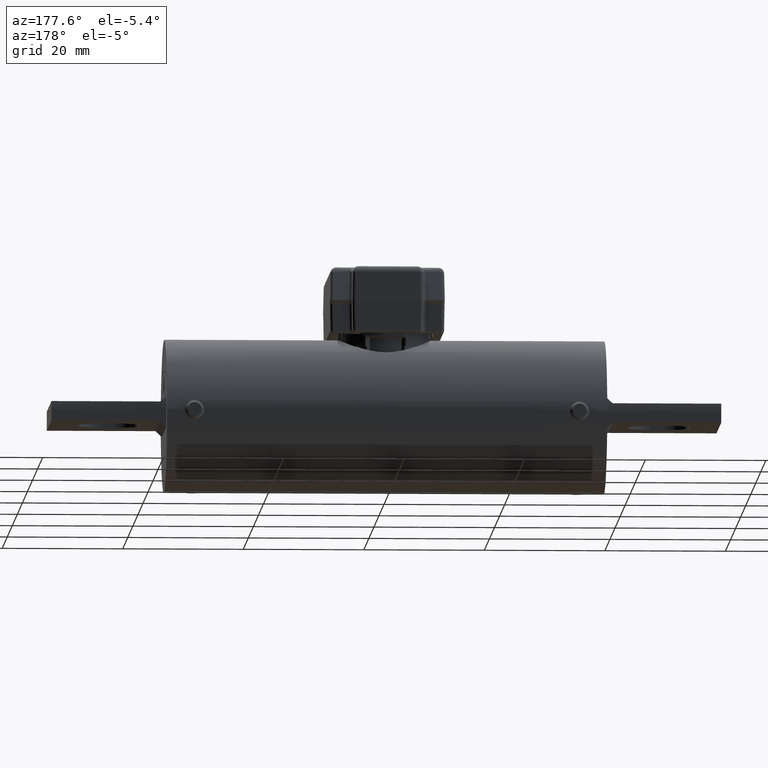
[diagram: clean part render]
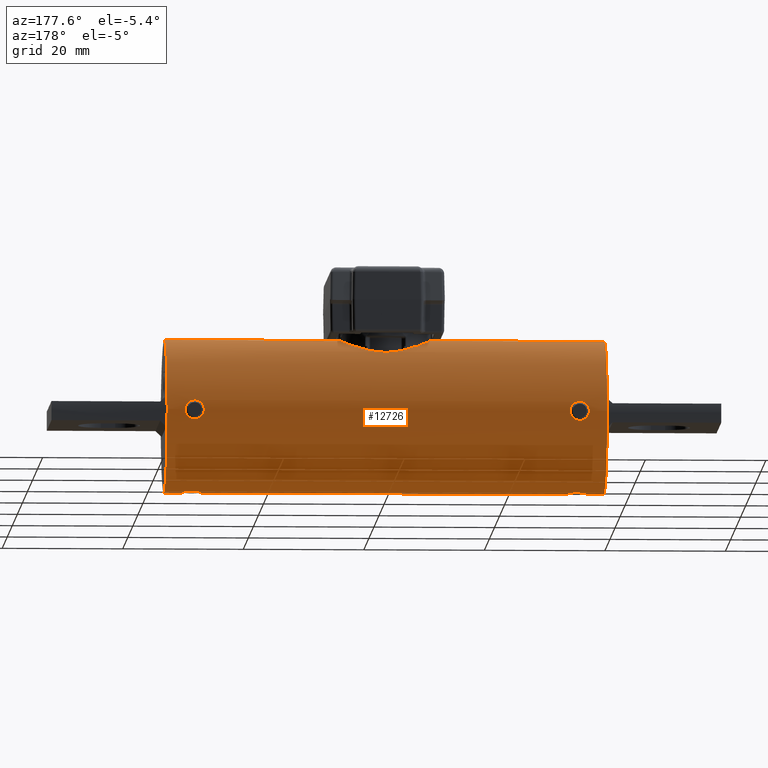
[diagram: same view with one face highlighted and labeled with its STEP entity id]
A machine part, auxiliary view. The second image highlights one B-rep face of the part: STEP entity #12726.
In plain terms, the highlighted cylindrical surface (bore or boss wall) has radius 12.7 mm, axis along (-1, -0, -0).
Its self-contained STEP definition (entity closure, byte-faithful):
#212 = CARTESIAN_POINT ( 'NONE',  ( -1.437500000000000000, 0.5000000000000000000, -4.350503661753281500E-018 ) ) ;
#219 = EDGE_LOOP ( 'NONE', ( #12238 ) ) ;
#337 = CARTESIAN_POINT ( 'NONE',  ( -1.257499999999999800, 0.4960783708246107600, 0.06250000000000000000 ) ) ;
#453 = CARTESIAN_POINT ( 'NONE',  ( -1.319595655223787500, 0.4999489905640459600, -0.008190941524493440200 ) ) ;
#576 = EDGE_CURVE ( 'NONE', #31474, #31474, #18086, .T. ) ;
#615 = CARTESIAN_POINT ( 'NONE',  ( 1.307206562763862300, -0.4985573244677425400, -0.03810746481187187600 ) ) ;
#640 = CARTESIAN_POINT ( 'NONE',  ( 1.295884908318192000, -0.04999238294626352800, -0.4975280437599332000 ) ) ;
#724 = CARTESIAN_POINT ( 'NONE',  ( 1.257499999999999800, 0.06249999999999977800, -0.4960783708246118700 ) ) ;
#749 = CARTESIAN_POINT ( 'NONE',  ( 1.216239491202372800, -0.4977828249535850600, -0.04712556157976027100 ) ) ;
#775 = CARTESIAN_POINT ( 'NONE',  ( 1.313686864666317600, 0.02767778165740591600, -0.4992477292312976800 ) ) ;
#866 = CARTESIAN_POINT ( 'NONE',  ( 1.216141816388842000, -0.4977911527964373800, 0.04703560355963951100 ) ) ;
#965 = CARTESIAN_POINT ( 'NONE',  ( -1.195405989953049400, -0.4999487909449428200, -0.008196878144086910300 ) ) ;
#979 = CARTESIAN_POINT ( 'NONE',  ( 1.288767747779057800, -0.4970512361286701900, 0.05427020760983326100 ) ) ;
#1021 = EDGE_LOOP ( 'NONE', ( #8880 ) ) ;
#1088 = CARTESIAN_POINT ( 'NONE',  ( -1.273709644937716300, -0.4963269458974843800, -0.06049966359275655400 ) ) ;
#1220 = CARTESIAN_POINT ( 'NONE',  ( -1.319998464438072400, -0.4999998080547725700, -0.004104124332361521800 ) ) ;
#1355 = CARTESIAN_POINT ( 'NONE',  ( -1.253423619746182300, -0.4960779024746064800, 0.06250371741446923700 ) ) ;
#1533 = DIRECTION ( 'NONE',  ( 1.000000000000000000, 1.288757327041179300E-017, 2.716172047394050600E-017 ) ) ;
#1790 = CARTESIAN_POINT ( 'NONE',  ( -0.2870142775421044000, -0.1007842548170761900, 0.4898349509663083600 ) ) ;
#1932 = CARTESIAN_POINT ( 'NONE',  ( -0.2764006808222186900, 0.1270673575543313800, 0.4836773442981498500 ) ) ;
#2001 = CARTESIAN_POINT ( 'NONE',  ( -1.313686182008423800, 0.4992476504834643100, -0.02767940375579234000 ) ) ;
#2033 = CARTESIAN_POINT ( 'NONE',  ( 0.1003489581096394800, 0.2883418728774969600, 0.4085886772095307400 ) ) ;
#2077 = CARTESIAN_POINT ( 'NONE',  ( -0.07062101437366043200, 0.2962505467809274900, 0.4027927927214302000 ) ) ;
#2144 = CARTESIAN_POINT ( 'NONE',  ( -1.241131140906368100, 0.4962914595925033700, -0.06086548017514419700 ) ) ;
#2175 = CARTESIAN_POINT ( 'NONE',  ( 0.3027829850546712200, 0.04187837565067419100, 0.4986422031088471600 ) ) ;
#2219 = B_SPLINE_CURVE_WITH_KNOTS ( 'NONE', 3,
 ( #31547, #25304, #12918, #34606, #16032, #37778, #19117, #615, #22274, #3743, #25416, #6790, #28550, #9879, #31677, #13047, #34745, #16162, #37901, #19240, #749, #22413, #3871, #25540, #6916, #28681, #10001, #31814, #13174, #34872, #16279, #38028, #19367, #866, #22540, #4000, #25663, #7045, #28799, #10132, #31936, #13303, #35006, #16404, #38162, #19509, #979, #22668, #4135, #25794, #7168, #28927, #10280, #32060 ),
 .UNSPECIFIED., .T., .F.,
 ( 4, 2, 2, 2, 2, 2, 2, 2, 2, 2, 2, 2, 2, 2, 2, 2, 2, 2, 2, 2, 2, 2, 2, 2, 2, 2, 4 ),
 ( 0.0000000000000000000, 0.0003104694554202024300, 0.0006209389108404049700, 0.0009314083662606075600, 0.001241877821680810200, 0.001862816732521201000, 0.002483755643361592100, 0.002794225098781787900, 0.003104694554201982800, 0.003415164009622178100, 0.003725633465042373000, 0.004036102920462568800, 0.004346572375882764100, 0.004657041831302958500, 0.004967511286723153900, 0.005588450197563545400, 0.006209389108403935200, 0.006519858563824135700, 0.006830328019244334500, 0.007140797474664533300, 0.007451266930084732100, 0.007761736385504931800, 0.008072205840925130600, 0.008382675296345329400, 0.008693144751765528200, 0.009314083662605925800, 0.009935022573446325100 ),
 .UNSPECIFIED. ) ;
#2276 = CARTESIAN_POINT ( 'NONE',  ( -1.196981405171167400, 0.4997555736180577200, 0.01613559382510986900 ) ) ;
#2300 = CARTESIAN_POINT ( 'NONE',  ( 0.2418117716749440500, -0.1859671060584045200, 0.4642012204317065800 ) ) ;
#2390 = B_SPLINE_CURVE_WITH_KNOTS ( 'NONE', 3,
 ( #17432, #7699, #39210, #20580, #2033, #23743, #5111, #26850, #8233, #29962, #11350, #33080, #14464, #36231, #17560, #39354, #20708, #2175, #23883, #5243, #26988, #8377, #30098, #11480, #33226, #14600, #36355, #17699, #39500, #20835, #2300, #24038, #5374, #27132, #8507, #30230, #11623, #33346, #14738, #36493, #17839, #39633, #20980, #2433, #24172, #5513, #27279, #8628, #30374, #11762, #33471, #14872, #36637, #17975, #39770, #21115, #2580, #24315, #5652, #27418, #8760, #30501, #17219, #20348, #1790, #23512, #4895, #26616, #8018, #29724, #11116, #32875, #14242, #35998, #17338, #39123, #20483, #1932, #23650, #5028, #26754, #8147, #29869, #11257, #32998, #14374, #36136, #17470, #39257, #20618, #2077, #23785, #5158, #26892, #8276, #30005 ),
 .UNSPECIFIED., .T., .F.,
 ( 4, 2, 2, 2, 2, 2, 2, 2, 2, 2, 2, 2, 2, 2, 2, 2, 2, 2, 2, 2, 2, 2, 2, 2, 2, 2, 2, 2, 2, 2, 2, 2, 2, 2, 2, 2, 2, 2, 2, 2, 2, 2, 2, 2, 2, 2, 2, 4 ),
 ( 0.0000000000000000000, 0.001549650798207477800, 0.003099301596414955700, 0.004648952394622434200, 0.006198603192829911300, 0.006973428591933649100, 0.007748253991037386800, 0.009297904789244859600, 0.01084755558745233500, 0.01239720638565980700, 0.01317203178476354700, 0.01394685718386728100, 0.01472168258297101900, 0.01549650798207475300, 0.01704615878028222600, 0.01782098417938596200, 0.01859580957848969800, 0.01937063497759343400, 0.02014546037669717400, 0.02169511117490464600, 0.02246993657400838200, 0.02324476197311211800, 0.02479441277131959300, 0.02634406356952707200, 0.02711888896863080800, 0.02789371436773454800, 0.02866853976683828400, 0.02944336516594202700, 0.03099301596414950200, 0.03176784136325324500, 0.03254266676235698100, 0.03409231756056446000, 0.03486714295966820300, 0.03564196835877193900, 0.03641679375787567500, 0.03719161915697941100, 0.03874126995518689000, 0.03951609535429062600, 0.04029092075339436900, 0.04106574615249810500, 0.04184057155160184100, 0.04339022234980932000, 0.04493987314801678500, 0.04648952394622426300, 0.04726434934532799300, 0.04803917474443172200, 0.04881400014353546500, 0.04958882554263919400 ),
 .UNSPECIFIED. ) ;
#2433 = CARTESIAN_POINT ( 'NONE',  ( 0.04271970932316926400, -0.3022375431745998900, 0.3983451510602527600 ) ) ;
#2472 = CARTESIAN_POINT ( 'NONE',  ( 1.196650164804164800, 0.4997868126409651400, 0.01642564646188216000 ) ) ;
#2495 = CARTESIAN_POINT ( 'NONE',  ( -1.312113075546024200, 0.03146293508964710700, -0.4990658710701930100 ) ) ;
#2580 = CARTESIAN_POINT ( 'NONE',  ( -0.1999847412210474800, -0.2300091487670632400, 0.4442141192552557800 ) ) ;
#2621 = CARTESIAN_POINT ( 'NONE',  ( 1.229773705330447800, 0.4968382241439636700, -0.05616292056679361000 ) ) ;
#2645 = CARTESIAN_POINT ( 'NONE',  ( -1.288881168684228800, -0.05420361203865550100, -0.4970584947662372000 ) ) ;
#2763 = CARTESIAN_POINT ( 'NONE',  ( 1.316783104636812400, 0.4996056401590636700, -0.02021254283739073000 ) ) ;
#2787 = CARTESIAN_POINT ( 'NONE',  ( -1.201362590241301400, -0.02777813184713141100, -0.4992421436114792800 ) ) ;
#2890 = CARTESIAN_POINT ( 'NONE',  ( 1.289011328285782200, 0.4970214863087187900, 0.05458516125259291900 ) ) ;
#2911 = CARTESIAN_POINT ( 'NONE',  ( -1.219026027969229500, 0.04992330185600604700, -0.4975350670415630300 ) ) ;
#2923 = CARTESIAN_POINT ( 'NONE',  ( 1.216180627246523000, 0.04706958153058851000, -0.4977879212851562500 ) ) ;
#3069 = CARTESIAN_POINT ( 'NONE',  ( 1.216203026983083500, -0.04709361215047941400, -0.4977858618940659300 ) ) ;
#3434 = CARTESIAN_POINT ( 'NONE',  ( -1.273690055211459600, 0.4963264095325282100, 0.06050402349051197500 ) ) ;
#3725 = CARTESIAN_POINT ( 'NONE',  ( -1.194999999999999800, -0.5000000000000000000, -6.715272548589508500E-017 ) ) ;
#3730 = EDGE_LOOP ( 'NONE', ( #27695 ) ) ;
#3743 = CARTESIAN_POINT ( 'NONE',  ( 1.295929122843945300, -0.4975315357459818600, -0.04995795352722903800 ) ) ;
#3766 = CARTESIAN_POINT ( 'NONE',  ( 1.307175838650762800, -0.03814726975449224400, -0.4985542548742699100 ) ) ;
#3871 = CARTESIAN_POINT ( 'NONE',  ( 1.207823323835861600, -0.4985543648053262800, -0.03814495283448220800 ) ) ;
#3895 = CARTESIAN_POINT ( 'NONE',  ( 1.307239858869736300, 0.03806407917967102200, -0.4985606568458560400 ) ) ;
#4000 = CARTESIAN_POINT ( 'NONE',  ( 1.226136242945633500, -0.4970573288580241200, 0.05421455175001196900 ) ) ;
#4107 = EDGE_LOOP ( 'NONE', ( #8407 ) ) ;
#4111 = CARTESIAN_POINT ( 'NONE',  ( -1.198199583253437100, -0.4996077059069863300, -0.02016153547161390500 ) ) ;
#4135 = CARTESIAN_POINT ( 'NONE',  ( 1.298777836073979700, -0.4977844619270133700, 0.04710597957305471400 ) ) ;
#4232 = CARTESIAN_POINT ( 'NONE',  ( -1.285179268635590300, -0.4968355786480978000, -0.05618624600079433900 ) ) ;
#4349 = CARTESIAN_POINT ( 'NONE',  ( -1.318365471400270400, -0.4997887517757653700, 0.01636892145062360900 ) ) ;
#4475 = CARTESIAN_POINT ( 'NONE',  ( -1.241364460190920400, -0.4963246256228307500, 0.06051860816765491200 ) ) ;
#4718 = B_SPLINE_CURVE_WITH_KNOTS ( 'NONE', 3,
 ( #38138, #31913, #965, #22645, #4111, #25770, #7152, #28909, #10251, #32038, #13389, #35128, #16504, #38263, #19618, #1088, #22772, #4232, #25901, #7289, #29026, #10398, #32175, #13507, #35255, #16645, #38394, #19748, #1220, #22909, #4349, #26028, #7420, #29146, #10523, #32303, #13639, #35402, #16769, #38525, #19887, #1355, #23046, #4475, #26160, #7559, #29281, #10655, #32421, #13780, #35542, #16898, #38659, #20030 ),
 .UNSPECIFIED., .T., .F.,
 ( 4, 2, 2, 2, 2, 2, 2, 2, 2, 2, 2, 2, 2, 2, 2, 2, 2, 2, 2, 2, 2, 2, 2, 2, 2, 2, 4 ),
 ( 0.0000000000000000000, 0.0003104694554201922400, 0.0006209389108403844800, 0.0009314083662605766600, 0.001241877821680768700, 0.001862816732521159600, 0.002483755643361560000, 0.002794225098781760100, 0.003104694554201959800, 0.003415164009622160300, 0.003725633465042360000, 0.004036102920462560100, 0.004346572375882759700, 0.004657041831302960300, 0.004967511286723159900, 0.005588450197563561000, 0.006209389108403961200, 0.006519858563824163500, 0.006830328019244364900, 0.007140797474664565400, 0.007451266930084766800, 0.007761736385504967300, 0.008072205840925168700, 0.008382675296345369300, 0.008693144751765569800, 0.009314083662605965700, 0.009935022573446359800 ),
 .UNSPECIFIED. ) ;
#4766 = FACE_OUTER_BOUND ( 'NONE', #26477, .T. ) ;
#4895 = CARTESIAN_POINT ( 'NONE',  ( -0.2955870357684511300, -0.07179461809382564600, 0.4949187758361848800 ) ) ;
#5028 = CARTESIAN_POINT ( 'NONE',  ( -0.2626663874919564200, 0.1534999143078399900, 0.4759422295027803100 ) ) ;
#5046 = EDGE_CURVE ( 'NONE', #20222, #20222, #33659, .T. ) ;
#5090 = CARTESIAN_POINT ( 'NONE',  ( -1.307209690505340100, 0.4985576679565900700, -0.03810195399619063800 ) ) ;
#5111 = CARTESIAN_POINT ( 'NONE',  ( 0.1540045538323727400, 0.2637054501044282500, 0.4249938491066960200 ) ) ;
#5158 = CARTESIAN_POINT ( 'NONE',  ( -0.04073760595673754000, 0.3018699683941340500, 0.3985928434305424700 ) ) ;
#5216 = CARTESIAN_POINT ( 'NONE',  ( -1.219115091681807400, 0.4975280437599334200, -0.04999238294626329200 ) ) ;
#5243 = CARTESIAN_POINT ( 'NONE',  ( 0.3050379134627133600, -0.009072089857162823600, 0.5000230891836774400 ) ) ;
#5345 = CARTESIAN_POINT ( 'NONE',  ( -1.201313135333682600, 0.4992477292312974500, 0.02767778165740623200 ) ) ;
#5374 = CARTESIAN_POINT ( 'NONE',  ( 0.2229223939723954400, -0.2081876909218730300, 0.4546597025597933200 ) ) ;
#5513 = CARTESIAN_POINT ( 'NONE',  ( -0.01898396575702679400, -0.3045801560161767700, 0.3965235672700581100 ) ) ;
#5547 = CARTESIAN_POINT ( 'NONE',  ( 1.194997744044198100, 0.5000002819944322500, -0.004045693888568052000 ) ) ;
#5569 = CARTESIAN_POINT ( 'NONE',  ( -1.319995459186318100, 0.008195494830062250900, -0.4999994323983760200 ) ) ;
#5635 = EDGE_LOOP ( 'NONE', ( #8821 ) ) ;
#5652 = CARTESIAN_POINT ( 'NONE',  ( -0.2273509380431671100, -0.2022370403131581700, 0.4573475731653511800 ) ) ;
#5686 = CARTESIAN_POINT ( 'NONE',  ( 1.241234901517917400, 0.4963287719338491100, -0.06048472929836581200 ) ) ;
#5708 = CARTESIAN_POINT ( 'NONE',  ( -1.277660660945808300, -0.05930066452345192400, -0.4964734895280880100 ) ) ;
#5720 = FACE_BOUND ( 'NONE', #8903, .T. ) ;
#5825 = CARTESIAN_POINT ( 'NONE',  ( 1.319586480588912100, 0.4999478504386056200, -0.008253339993256118100 ) ) ;
#5846 = CARTESIAN_POINT ( 'NONE',  ( -1.197010388631043000, -0.01624363288781757700, -0.4997520536924610600 ) ) ;
#5965 = CARTESIAN_POINT ( 'NONE',  ( 1.265766762816916200, 0.4960783708246111500, 0.06250000000000005600 ) ) ;
#5968 = CARTESIAN_POINT ( 'NONE',  ( 1.437500000000000000, 0.5000000000000000000, 7.373944270082563800E-017 ) ) ;
#5980 = CARTESIAN_POINT ( 'NONE',  ( -1.241020346722651300, 0.06083522554543807600, -0.4962952478256622000 ) ) ;
#5999 = CARTESIAN_POINT ( 'NONE',  ( 1.202886924453976800, 0.03146293508964713400, -0.4990658710701929600 ) ) ;
#6130 = CARTESIAN_POINT ( 'NONE',  ( 1.226118831315770000, -0.05420361203865537600, -0.4970584947662370400 ) ) ;
#6198 = VERTEX_POINT ( 'NONE', #724 ) ;
#6505 = CARTESIAN_POINT ( 'NONE',  ( -1.285228267081815600, 0.4968383298029137000, 0.05616199571157908700 ) ) ;
#6518 = CARTESIAN_POINT ( 'NONE',  ( 0.0005000000000001641600, 0.3044999999999999900, 0.3965851106635251400 ) ) ;
#6790 = CARTESIAN_POINT ( 'NONE',  ( 1.273925618332739700, -0.4962934146915266600, -0.06084983087721896500 ) ) ;
#6817 = CARTESIAN_POINT ( 'NONE',  ( 1.313637409758697800, -0.02777813184713142500, -0.4992421436114790600 ) ) ;
#6916 = CARTESIAN_POINT ( 'NONE',  ( 1.201337148269509700, -0.4992450173726789600, -0.02772644052468776300 ) ) ;
#6944 = CARTESIAN_POINT ( 'NONE',  ( 1.295973972030771200, 0.04992330185600600500, -0.4975350670415630300 ) ) ;
#7045 = CARTESIAN_POINT ( 'NONE',  ( 1.237287525221532500, -0.4964755968881502400, 0.05928312462641639100 ) ) ;
#7152 = CARTESIAN_POINT ( 'NONE',  ( -1.203258049270100400, -0.4990299115460125600, -0.03131664153770286800 ) ) ;
#7157 = DIRECTION ( 'NONE',  ( -1.000000000000000000, -1.288757327041179300E-017, -2.716172047394050600E-017 ) ) ;
#7168 = CARTESIAN_POINT ( 'NONE',  ( 1.312085068037232500, -0.4990627655198230900, 0.03151151274722226900 ) ) ;
#7289 = CARTESIAN_POINT ( 'NONE',  ( -1.295601724853099100, -0.4975279848322740100, -0.04970986325241712200 ) ) ;
#7420 = CARTESIAN_POINT ( 'NONE',  ( -1.307492187731790700, -0.4985580193291213600, 0.03838516094957741100 ) ) ;
#7559 = CARTESIAN_POINT ( 'NONE',  ( -1.229822373811808400, -0.4968354983571450800, 0.05618693838364095800 ) ) ;
#7655 = VERTEX_POINT ( 'NONE', #25041 ) ;
#7699 = CARTESIAN_POINT ( 'NONE',  ( 0.02118997659788131000, 0.3045000000000000500, 0.3965851106635253100 ) ) ;
#8018 = CARTESIAN_POINT ( 'NONE',  ( -0.3012566583671509300, -0.04203692901291277600, 0.4983333326108320700 ) ) ;
#8147 = CARTESIAN_POINT ( 'NONE',  ( -0.2409445629302863500, 0.1865862010634981600, 0.4642074793564279800 ) ) ;
#8205 = CARTESIAN_POINT ( 'NONE',  ( -1.298796973016916400, 0.4977858618940657100, -0.04709361215047930300 ) ) ;
#8233 = CARTESIAN_POINT ( 'NONE',  ( 0.2014574608470895100, 0.2295867788816869100, 0.4444302655020163100 ) ) ;
#8276 = CARTESIAN_POINT ( 'NONE',  ( -0.009844988298940302000, 0.3045000000000000500, 0.3965851106635250300 ) ) ;
#8345 = CARTESIAN_POINT ( 'NONE',  ( -1.207824161349237500, 0.4985542548742700200, -0.03814726975449226500 ) ) ;
#8377 = CARTESIAN_POINT ( 'NONE',  ( 0.3025602786431100300, -0.03980464533526030500, 0.4985173386503863300 ) ) ;
#8407 = ORIENTED_EDGE ( 'NONE', *, *, #39997, .T. ) ;
#8484 = CARTESIAN_POINT ( 'NONE',  ( -1.207760141130264300, 0.4985606568458562600, 0.03806407917967136200 ) ) ;
#8507 = CARTESIAN_POINT ( 'NONE',  ( 0.2021055104850236200, -0.2284074599393149900, 0.4448362374618627400 ) ) ;
#8536 = CARTESIAN_POINT ( 'NONE',  ( 1.249303125030975400, 0.4961299987613714800, 0.06209400926846896800 ) ) ;
#8628 = CARTESIAN_POINT ( 'NONE',  ( -0.06908024914182797600, -0.2966169518567423100, 0.4025226851765912300 ) ) ;
#8660 = CARTESIAN_POINT ( 'NONE',  ( 1.197000350221191200, 0.4997532695157637600, -0.01620969763353656600 ) ) ;
#8682 = CARTESIAN_POINT ( 'NONE',  ( -1.319595655223788000, -0.008190941524493438500, -0.4999489905640459600 ) ) ;
#8760 = CARTESIAN_POINT ( 'NONE',  ( -0.2457234659543125800, -0.1794139567216518300, 0.4667807568828744000 ) ) ;
#8792 = CARTESIAN_POINT ( 'NONE',  ( 1.253395860340080500, 0.4960785644156474100, -0.06249846341867248300 ) ) ;
#8815 = CARTESIAN_POINT ( 'NONE',  ( -1.265749269175119800, -0.06208788500991853400, -0.4961307759680451100 ) ) ;
#8821 = ORIENTED_EDGE ( 'NONE', *, *, #25673, .T. ) ;
#8880 = ORIENTED_EDGE ( 'NONE', *, *, #36218, .T. ) ;
#8903 = EDGE_LOOP ( 'NONE', ( #26449 ) ) ;
#8933 = CARTESIAN_POINT ( 'NONE',  ( 1.320003714224566600, 0.5000004642778830300, 0.004076405710314690700 ) ) ;
#8957 = CARTESIAN_POINT ( 'NONE',  ( -1.195003765399444800, -0.004189515023694888500, -0.4999995293252586000 ) ) ;
#9094 = CARTESIAN_POINT ( 'NONE',  ( -1.257500000000000300, 0.06249999999999975700, -0.4960783708246119800 ) ) ;
#9105 = CARTESIAN_POINT ( 'NONE',  ( 1.195004540813681800, 0.008195494830062294300, -0.4999994323983754700 ) ) ;
#9245 = CARTESIAN_POINT ( 'NONE',  ( 1.237339339054192000, -0.05930066452345188900, -0.4964734895280878400 ) ) ;
#9470 = CARTESIAN_POINT ( 'NONE',  ( -1.261633381408457900, 0.4960783708246107600, 0.06250000000000002800 ) ) ;
#9595 = CARTESIAN_POINT ( 'NONE',  ( -1.295607256945399800, 0.4975283313349076500, 0.04970671986749154700 ) ) ;
#9879 = CARTESIAN_POINT ( 'NONE',  ( 1.253454348409146900, -0.4960780863776038100, -0.06250225772847886600 ) ) ;
#9906 = CARTESIAN_POINT ( 'NONE',  ( 1.317989611368957300, -0.01624363288781746600, -0.4997520536924611700 ) ) ;
#10001 = CARTESIAN_POINT ( 'NONE',  ( 1.197015277476393600, -0.4997514570076258000, -0.01626513118965666100 ) ) ;
#10031 = CARTESIAN_POINT ( 'NONE',  ( 1.273979653277348900, 0.06083522554543811100, -0.4962952478256622000 ) ) ;
#10132 = CARTESIAN_POINT ( 'NONE',  ( 1.249246645884934300, -0.4961309470228957900, 0.06208647693790036300 ) ) ;
#10251 = CARTESIAN_POINT ( 'NONE',  ( -1.210430614078566100, -0.4982981511964711400, -0.04131959655871618500 ) ) ;
#10280 = CARTESIAN_POINT ( 'NONE',  ( 1.319999999999998500, -0.4999999999999997200, 0.008266752415455973900 ) ) ;
#10398 = CARTESIAN_POINT ( 'NONE',  ( -1.304593411899869200, -0.4983002113956036000, -0.04129719961542303200 ) ) ;
#10523 = CARTESIAN_POINT ( 'NONE',  ( -1.295647051977252300, -0.4975314065357723200, 0.04967600329600603500 ) ) ;
#10655 = CARTESIAN_POINT ( 'NONE',  ( -1.219436128242872500, -0.4975249919541805400, 0.04974001560158680000 ) ) ;
#10719 = EDGE_CURVE ( 'NONE', #25223, #25223, #2219, .T. ) ;
#11116 = CARTESIAN_POINT ( 'NONE',  ( -0.3039608882152491400, -0.01142501688191712600, 0.4999761810175162900 ) ) ;
#11257 = CARTESIAN_POINT ( 'NONE',  ( -0.2010638721261940900, 0.2290634125187299700, 0.4447042192333497400 ) ) ;
#11325 = CARTESIAN_POINT ( 'NONE',  ( -1.288881168684228500, 0.4970584947662370900, -0.05420361203865543800 ) ) ;
#11350 = CARTESIAN_POINT ( 'NONE',  ( 0.2285737027270299800, 0.2019855840031923300, 0.4574587198441003600 ) ) ;
#11456 = CARTESIAN_POINT ( 'NONE',  ( -1.201362590241301700, 0.4992421436114791200, -0.02777813184713114400 ) ) ;
#11480 = CARTESIAN_POINT ( 'NONE',  ( 0.2970834035948732900, -0.06972188103211551800, 0.4952160542920239800 ) ) ;
#11589 = CARTESIAN_POINT ( 'NONE',  ( -1.219026027969229500, 0.4975350670415632500, 0.04992330185600623400 ) ) ;
#11623 = CARTESIAN_POINT ( 'NONE',  ( 0.1792666946522586400, -0.2466933827991674400, 0.4349510003437671600 ) ) ;
#11661 = CARTESIAN_POINT ( 'NONE',  ( 1.237338530373908800, 0.4964735179478079700, 0.05930043591900575900 ) ) ;
#11683 = CARTESIAN_POINT ( 'NONE',  ( -1.273690055211458500, 0.06050402349051198200, -0.4963264095325281600 ) ) ;
#11762 = CARTESIAN_POINT ( 'NONE',  ( -0.09826774686592097700, -0.2882132730922681900, 0.4085906180531448900 ) ) ;
#11798 = CARTESIAN_POINT ( 'NONE',  ( 1.201313817991575900, 0.4992476504834645900, -0.02767940375579223300 ) ) ;
#11822 = CARTESIAN_POINT ( 'NONE',  ( -1.316818811164132600, -0.02010758769802950500, -0.4996098986434334100 ) ) ;
#11939 = CARTESIAN_POINT ( 'NONE',  ( 1.273868859093631300, 0.4962914595925033100, -0.06086548017514412800 ) ) ;
#11962 = CARTESIAN_POINT ( 'NONE',  ( -1.249362121555798600, -0.06250305994589848400, -0.4960779853076920400 ) ) ;
#12075 = CARTESIAN_POINT ( 'NONE',  ( 1.318018594828832300, 0.4997555736180576100, 0.01613559382510974100 ) ) ;
#12098 = CARTESIAN_POINT ( 'NONE',  ( -1.195398519998304400, 0.008140263493542855900, -0.4999497243330156500 ) ) ;
#12238 = ORIENTED_EDGE ( 'NONE', *, *, #10719, .T. ) ;
#12257 = CARTESIAN_POINT ( 'NONE',  ( 1.195404344776212600, -0.008190941524493414200, -0.4999489905640458500 ) ) ;
#12341 = EDGE_CURVE ( 'NONE', #32459, #32459, #31424, .T. ) ;
#12726 = ADVANCED_FACE ( 'NONE', ( #37826, #38768, #22250, #5720, #29514, #21262, #13029, #4766, #36844 ), #16386, .T. ) ;
#12743 = CARTESIAN_POINT ( 'NONE',  ( -1.307457751101993100, 0.4985545335726012100, 0.03842938180159878600 ) ) ;
#12758 = CARTESIAN_POINT ( 'NONE',  ( -1.257499999999999800, 0.4960783708246107600, 0.06249999999999999300 ) ) ;
#12918 = CARTESIAN_POINT ( 'NONE',  ( 1.319594010046950800, -0.4999487909449428200, -0.008196878144086908500 ) ) ;
#12949 = CARTESIAN_POINT ( 'NONE',  ( 1.249250730824881000, -0.06208788500991852700, -0.4961307759680453300 ) ) ;
#13015 = VERTEX_POINT ( 'NONE', #6518 ) ;
#13029 = FACE_OUTER_BOUND ( 'NONE', #13134, .T. ) ;
#13047 = CARTESIAN_POINT ( 'NONE',  ( 1.241290355062283100, -0.4963269458974844400, -0.06049966359275656100 ) ) ;
#13067 = CARTESIAN_POINT ( 'NONE',  ( 1.319996234600554900, -0.004189515023694773100, -0.4999995293252586000 ) ) ;
#13134 = EDGE_LOOP ( 'NONE', ( #14034 ) ) ;
#13174 = CARTESIAN_POINT ( 'NONE',  ( 1.195001535561927900, -0.4999998080547724500, -0.004104124332361572100 ) ) ;
#13198 = CARTESIAN_POINT ( 'NONE',  ( 1.257499999999999800, 0.06249999999999979200, -0.4960783708246119300 ) ) ;
#13303 = CARTESIAN_POINT ( 'NONE',  ( 1.261576380253817400, -0.4960779024746062000, 0.06250371741446930600 ) ) ;
#13389 = CARTESIAN_POINT ( 'NONE',  ( -1.226037246235639700, -0.4970183672692586300, -0.05461316673625712200 ) ) ;
#13507 = CARTESIAN_POINT ( 'NONE',  ( -1.311703502867259500, -0.4990257530777412700, -0.03138136164000080600 ) ) ;
#13639 = CARTESIAN_POINT ( 'NONE',  ( -1.285277983762054500, -0.4968411119771189400, 0.05613747963933198000 ) ) ;
#13780 = CARTESIAN_POINT ( 'NONE',  ( -1.207576903404428800, -0.4985510091392397800, 0.03847423392686172300 ) ) ;
#13854 = EDGE_CURVE ( 'NONE', #7655, #7655, #29109, .T. ) ;
#14034 = ORIENTED_EDGE ( 'NONE', *, *, #12341, .T. ) ;
#14242 = CARTESIAN_POINT ( 'NONE',  ( -0.3020646188576339200, 0.03986237408571310200, 0.4988134917425697300 ) ) ;
#14374 = CARTESIAN_POINT ( 'NONE',  ( -0.1536564895277071900, 0.2633121486578252100, 0.4252352484595156600 ) ) ;
#14435 = CARTESIAN_POINT ( 'NONE',  ( -1.277660660945808300, 0.4964734895280879500, -0.05930066452345184000 ) ) ;
#14464 = CARTESIAN_POINT ( 'NONE',  ( 0.2469787384077002900, 0.1790644639169267900, 0.4669154591829085500 ) ) ;
#14572 = CARTESIAN_POINT ( 'NONE',  ( -1.197010388631043500, 0.4997520536924611700, -0.01624363288781733400 ) ) ;
#14600 = CARTESIAN_POINT ( 'NONE',  ( 0.2886632625614616300, -0.09891893177194191500, 0.4902163621598617000 ) ) ;
#14713 = CARTESIAN_POINT ( 'NONE',  ( -1.241020346722651900, 0.4962952478256620300, 0.06083522554543822200 ) ) ;
#14738 = CARTESIAN_POINT ( 'NONE',  ( 0.1380056782597801900, -0.2723965134032487700, 0.4193887870165091700 ) ) ;
#14782 = CARTESIAN_POINT ( 'NONE',  ( 1.226183537528283000, 0.4970543212474239900, 0.05424205204585729600 ) ) ;
#14804 = CARTESIAN_POINT ( 'NONE',  ( -1.285228267081815600, 0.05616199571157890600, -0.4968383298029136500 ) ) ;
#14872 = CARTESIAN_POINT ( 'NONE',  ( -0.1259330057040281800, -0.2771878223209307000, 0.4161588588016679700 ) ) ;
#14909 = CARTESIAN_POINT ( 'NONE',  ( 1.207790309494660000, 0.4985576679565902300, -0.03810195399619053400 ) ) ;
#14931 = CARTESIAN_POINT ( 'NONE',  ( -1.311730987567794500, -0.03133388287279746000, -0.4990287516373731500 ) ) ;
#15049 = CARTESIAN_POINT ( 'NONE',  ( 1.295884908318192300, 0.4975280437599334200, -0.04999238294626348600 ) ) ;
#15074 = CARTESIAN_POINT ( 'NONE',  ( -1.226083524272746600, -0.05464019836948766400, -0.4970153601887484200 ) ) ;
#15196 = CARTESIAN_POINT ( 'NONE',  ( 1.313686864666317600, 0.4992477292312976800, 0.02767778165740606200 ) ) ;
#15218 = CARTESIAN_POINT ( 'NONE',  ( -1.198181746858435300, 0.02010890854172155500, -0.4996098343080758700 ) ) ;
#15230 = CARTESIAN_POINT ( 'NONE',  ( 1.241309944788541200, 0.06050402349051199600, -0.4963264095325279900 ) ) ;
#15369 = CARTESIAN_POINT ( 'NONE',  ( 1.198181188835867500, -0.02010758769802941500, -0.4996098986434330800 ) ) ;
#15873 = CARTESIAN_POINT ( 'NONE',  ( -1.318349835195835400, 0.4997868126409648600, 0.01642564646188206200 ) ) ;
#16032 = CARTESIAN_POINT ( 'NONE',  ( 1.316800416746563900, -0.4996077059069866100, -0.02016153547161392300 ) ) ;
#16058 = CARTESIAN_POINT ( 'NONE',  ( 1.265637878444201300, -0.06250305994589847000, -0.4960779853076922000 ) ) ;
#16162 = CARTESIAN_POINT ( 'NONE',  ( 1.229820731364409400, -0.4968355786480977400, -0.05618624600079428300 ) ) ;
#16188 = CARTESIAN_POINT ( 'NONE',  ( 1.319601480001695700, 0.008140263493542940900, -0.4999497243330155400 ) ) ;
#16279 = CARTESIAN_POINT ( 'NONE',  ( 1.196634528599730200, -0.4997887517757655900, 0.01636892145062341500 ) ) ;
#16375 = VERTEX_POINT ( 'NONE', #3725 ) ;
#16386 = CYLINDRICAL_SURFACE ( 'NONE', #19309, 0.5000000000000000000 ) ;
#16404 = CARTESIAN_POINT ( 'NONE',  ( 1.273635539809079300, -0.4963246256228306400, 0.06051860816765500300 ) ) ;
#16504 = CARTESIAN_POINT ( 'NONE',  ( -1.249304507228617500, -0.4960789433657199500, -0.06249545559511793900 ) ) ;
#16645 = CARTESIAN_POINT ( 'NONE',  ( -1.316800643227257700, -0.4996077338713961800, -0.02016073241485926600 ) ) ;
#16769 = CARTESIAN_POINT ( 'NONE',  ( -1.273743594315314100, -0.4963281707660440700, 0.06048961990646484900 ) ) ;
#16780 = DIRECTION ( 'NONE',  ( 1.000000000000000000, 1.288757327041179300E-017, 2.716172047394050600E-017 ) ) ;
#16898 = CARTESIAN_POINT ( 'NONE',  ( -1.196664771161471100, -0.4997849931155404800, 0.01647968508228812200 ) ) ;
#17219 = CARTESIAN_POINT ( 'NONE',  ( -0.2716658404676377000, -0.1380162470649162800, 0.4809496713721555000 ) ) ;
#17338 = CARTESIAN_POINT ( 'NONE',  ( -0.2935510420594446000, 0.07973515879577676400, 0.4937002751556491300 ) ) ;
#17432 = CARTESIAN_POINT ( 'NONE',  ( 0.0005000000000001850800, 0.3045000000000000500, 0.3965851106635250900 ) ) ;
#17470 = CARTESIAN_POINT ( 'NONE',  ( -0.1090925316960681400, 0.2842682976793630700, 0.4113556100876701300 ) ) ;
#17499 = B_SPLINE_CURVE_WITH_KNOTS ( 'NONE', 3,
 ( #27485, #30723, #33817, #15230, #36985, #18323, #40138, #21459, #2923, #24669, #5999, #27763, #9105, #30861, #12257, #33955, #15369, #37128, #18456, #40275, #21609, #3069, #24803, #6130, #27919, #9245, #31000, #12949, #34636, #16058, #37801, #19148, #640, #22301, #3766, #25443, #6817, #28574, #9906, #31706, #13067, #34770, #16188, #37923, #19267, #775, #22438, #3895, #25568, #6944, #28700, #10031, #31836, #13198 ),
 .UNSPECIFIED., .T., .F.,
 ( 4, 2, 2, 2, 2, 2, 2, 2, 2, 2, 2, 2, 2, 2, 2, 2, 2, 2, 2, 2, 2, 2, 2, 2, 2, 2, 4 ),
 ( 0.0000000000000000000, 0.0003104692780441329200, 0.0006209385560882658500, 0.0009314078341323988800, 0.001241877112176531700, 0.001862815668264797800, 0.002483754224353063400, 0.002794223502397196500, 0.003104692780441329700, 0.003415162058485462400, 0.003725631336529595500, 0.004036100614573728600, 0.004346569892617861300, 0.004657039170661994100, 0.004967508448706126800, 0.005588447004794413900, 0.006209385560882700100, 0.006519854838926836300, 0.006830324116970973300, 0.007140793395015109500, 0.007451262673059245700, 0.007761731951103381800, 0.008072201229147518000, 0.008382670507191655000, 0.008693139785235790400, 0.009314078341324076600, 0.009935016897412364500 ),
 .UNSPECIFIED. ) ;
#17530 = CARTESIAN_POINT ( 'NONE',  ( -1.265749269175119300, 0.4961307759680450000, -0.06208788500991849200 ) ) ;
#17560 = CARTESIAN_POINT ( 'NONE',  ( 0.2728542925419412100, 0.1376144361788289600, 0.4810573748441496200 ) ) ;
#17672 = CARTESIAN_POINT ( 'NONE',  ( -1.195003765399445200, 0.4999995293252586000, -0.004189515023694565000 ) ) ;
#17699 = CARTESIAN_POINT ( 'NONE',  ( 0.2736038559847313600, -0.1361417486701193600, 0.4814827735474157500 ) ) ;
#17808 = CARTESIAN_POINT ( 'NONE',  ( -1.257499999999999800, 0.4960783708246107600, 0.06250000000000000000 ) ) ;
#17839 = CARTESIAN_POINT ( 'NONE',  ( 0.1015280284712464400, -0.2874285406982074500, 0.4091438033657663300 ) ) ;
#17875 = CARTESIAN_POINT ( 'NONE',  ( 1.216180627246524300, 0.4977879212851565900, 0.04706958153058857900 ) ) ;
#17898 = CARTESIAN_POINT ( 'NONE',  ( -1.295607256945399100, 0.04970671986749147100, -0.4975283313349074800 ) ) ;
#17975 = CARTESIAN_POINT ( 'NONE',  ( -0.1521980016692925400, -0.2636297309844674000, 0.4248880523045955900 ) ) ;
#18012 = CARTESIAN_POINT ( 'NONE',  ( 1.216203026983083700, 0.4977858618940659300, -0.04709361215047935100 ) ) ;
#18038 = CARTESIAN_POINT ( 'NONE',  ( -1.304625386413845500, -0.04126071062264264500, -0.4983032473965150500 ) ) ;
#18086 = CIRCLE ( 'NONE', #23441, 0.5000000000000000000 ) ;
#18161 = CARTESIAN_POINT ( 'NONE',  ( 1.307175838650763300, 0.4985542548742701900, -0.03814726975449235500 ) ) ;
#18180 = CARTESIAN_POINT ( 'NONE',  ( -1.210464598297713100, -0.04135841355171797400, -0.4982949225092939700 ) ) ;
#18288 = CARTESIAN_POINT ( 'NONE',  ( 1.307239858869736000, 0.4985606568458561500, 0.03806407917967110500 ) ) ;
#18309 = CARTESIAN_POINT ( 'NONE',  ( -1.203229896524892700, 0.03126793170292413400, -0.4990329840054554300 ) ) ;
#18323 = CARTESIAN_POINT ( 'NONE',  ( 1.229771732918184300, 0.05616199571157896900, -0.4968383298029135900 ) ) ;
#18456 = CARTESIAN_POINT ( 'NONE',  ( 1.203269012432204700, -0.03133388287279748700, -0.4990287516373732000 ) ) ;
#18945 = CARTESIAN_POINT ( 'NONE',  ( -1.320002255955801800, 0.5000002819944321400, -0.004045693888568163000 ) ) ;
#19117 = CARTESIAN_POINT ( 'NONE',  ( 1.311741950729900000, -0.4990299115460122800, -0.03131664153770277700 ) ) ;
#19148 = CARTESIAN_POINT ( 'NONE',  ( 1.288916475727253300, -0.05464019836948765000, -0.4970153601887486400 ) ) ;
#19240 = CARTESIAN_POINT ( 'NONE',  ( 1.219398275146901200, -0.4975279848322740100, -0.04970986325241717700 ) ) ;
#19267 = CARTESIAN_POINT ( 'NONE',  ( 1.316818253141564400, 0.02010890854172157600, -0.4996098343080757100 ) ) ;
#19309 = AXIS2_PLACEMENT_3D ( 'NONE', #38269, #7157, #32181 ) ;
#19367 = CARTESIAN_POINT ( 'NONE',  ( 1.207507812268209900, -0.4985580193291220300, 0.03838516094957752200 ) ) ;
#19509 = CARTESIAN_POINT ( 'NONE',  ( 1.285177626188191800, -0.4968354983571451900, 0.05618693838364102100 ) ) ;
#19618 = CARTESIAN_POINT ( 'NONE',  ( -1.265690896404542400, -0.4961297969471575900, -0.06209566087846733800 ) ) ;
#19748 = CARTESIAN_POINT ( 'NONE',  ( -1.319587890412677000, -0.4999480205565213800, -0.008249243327589543900 ) ) ;
#19887 = CARTESIAN_POINT ( 'NONE',  ( -1.261689586741320700, -0.4960788456331256000, 0.06249623132268451000 ) ) ;
#20030 = CARTESIAN_POINT ( 'NONE',  ( -1.194999999999999600, -0.5000000000000000000, -6.669550765781892000E-017 ) ) ;
#20085 = CARTESIAN_POINT ( 'NONE',  ( -1.437500000000000000, -1.852588657621695100E-017, -3.904497318128946000E-017 ) ) ;
#20222 = VERTEX_POINT ( 'NONE', #24772 ) ;
#20268 = VERTEX_POINT ( 'NONE', #12758 ) ;
#20348 = CARTESIAN_POINT ( 'NONE',  ( -0.2834821593799415300, -0.1103403958065235900, 0.4877655838258544400 ) ) ;
#20483 = CARTESIAN_POINT ( 'NONE',  ( -0.2841356849151339700, 0.1086398972226183400, 0.4881467601803886100 ) ) ;
#20551 = CARTESIAN_POINT ( 'NONE',  ( -1.316818811164132400, 0.4996098986434329100, -0.02010758769802950900 ) ) ;
#20580 = CARTESIAN_POINT ( 'NONE',  ( 0.08089209348436692000, 0.2943869385805670800, 0.4041798579602842700 ) ) ;
#20618 = CARTESIAN_POINT ( 'NONE',  ( -0.08037590596427883500, 0.2937355949773974900, 0.4046392343131816600 ) ) ;
#20676 = CARTESIAN_POINT ( 'NONE',  ( -1.249362121555798600, 0.4960779853076919300, -0.06250305994589844300 ) ) ;
#20708 = CARTESIAN_POINT ( 'NONE',  ( 0.2945954168402356000, 0.08146586520911511300, 0.4937217413423418700 ) ) ;
#20804 = CARTESIAN_POINT ( 'NONE',  ( -1.195398519998304200, 0.4999497243330155400, 0.008140263493543185500 ) ) ;
#20835 = CARTESIAN_POINT ( 'NONE',  ( 0.2477040646803677100, -0.1780665833155996900, 0.4672986826890342900 ) ) ;
#20980 = CARTESIAN_POINT ( 'NONE',  ( 0.07244759112303268700, -0.2960510778927862300, 0.4029396446713548500 ) ) ;
#21018 = CARTESIAN_POINT ( 'NONE',  ( 1.202886924453976600, 0.4990658710701930100, 0.03146293508964727300 ) ) ;
#21041 = CARTESIAN_POINT ( 'NONE',  ( -1.307457751101993400, 0.03842938180159873000, -0.4985545335726013800 ) ) ;
#21115 = CARTESIAN_POINT ( 'NONE',  ( -0.1850141259469428900, -0.2422519063898236900, 0.4375756353914445100 ) ) ;
#21144 = CARTESIAN_POINT ( 'NONE',  ( 1.226118831315770500, 0.4970584947662373100, -0.05420361203865537600 ) ) ;
#21166 = CARTESIAN_POINT ( 'NONE',  ( -1.295644722092307100, -0.04967685056971515900, -0.4975312947893719100 ) ) ;
#21262 = FACE_BOUND ( 'NONE', #4107, .T. ) ;
#21284 = CARTESIAN_POINT ( 'NONE',  ( 1.313637409758698700, 0.4992421436114791200, -0.02777813184713122000 ) ) ;
#21306 = CARTESIAN_POINT ( 'NONE',  ( -1.203285551666139200, -0.03136393991885801100, -0.4990269156225216100 ) ) ;
#21425 = CARTESIAN_POINT ( 'NONE',  ( 1.295973972030771000, 0.4975350670415631900, 0.04992330185600624100 ) ) ;
#21444 = CARTESIAN_POINT ( 'NONE',  ( -1.210394217282444900, 0.04127806175893034000, -0.4983016068291279400 ) ) ;
#21459 = CARTESIAN_POINT ( 'NONE',  ( 1.219392743054601000, 0.04970671986749165800, -0.4975283313349073100 ) ) ;
#21609 = CARTESIAN_POINT ( 'NONE',  ( 1.210374613586154200, -0.04126071062264270700, -0.4983032473965149400 ) ) ;
#21670 = AXIS2_PLACEMENT_3D ( 'NONE', #20085, #1533, #23234 ) ;
#21963 = CARTESIAN_POINT ( 'NONE',  ( -1.265696874969023600, 0.4961299987613714300, 0.06209400926846891200 ) ) ;
#22107 = CARTESIAN_POINT ( 'NONE',  ( -1.317999649778808500, 0.4997532695157634900, -0.01620969763353664200 ) ) ;
#22250 = FACE_BOUND ( 'NONE', #3730, .T. ) ;
#22274 = CARTESIAN_POINT ( 'NONE',  ( 1.304569385921433600, -0.4982981511964709200, -0.04131959655871601100 ) ) ;
#22301 = CARTESIAN_POINT ( 'NONE',  ( 1.304535401702286300, -0.04135841355171807100, -0.4982949225092937500 ) ) ;
#22413 = CARTESIAN_POINT ( 'NONE',  ( 1.210406588100130700, -0.4983002113956037600, -0.04129719961542303900 ) ) ;
#22438 = CARTESIAN_POINT ( 'NONE',  ( 1.311770103475107300, 0.03126793170292405100, -0.4990329840054555400 ) ) ;
#22540 = CARTESIAN_POINT ( 'NONE',  ( 1.219352948022747200, -0.4975314065357721600, 0.04967600329600619500 ) ) ;
#22645 = CARTESIAN_POINT ( 'NONE',  ( -1.196995985564551800, -0.4997538026332606900, -0.01619009364441497900 ) ) ;
#22668 = CARTESIAN_POINT ( 'NONE',  ( 1.295563871757128100, -0.4975249919541805400, 0.04974001560158697300 ) ) ;
#22772 = CARTESIAN_POINT ( 'NONE',  ( -1.277607512063360800, -0.4964713106915314400, -0.05931883436552630500 ) ) ;
#22909 = CARTESIAN_POINT ( 'NONE',  ( -1.320003057924580900, -0.5000003822405461000, 0.008137894364418437800 ) ) ;
#23046 = CARTESIAN_POINT ( 'NONE',  ( -1.249359760559120200, -0.4961290576582544900, 0.06210148211859096300 ) ) ;
#23234 = DIRECTION ( 'NONE',  ( 0.0000000000000000000, 1.000000000000000000, 6.938893903907235800E-017 ) ) ;
#23237 = DIRECTION ( 'NONE',  ( 0.0000000000000000000, 1.000000000000000000, 6.938893903907235800E-017 ) ) ;
#23441 = AXIS2_PLACEMENT_3D ( 'NONE', #26497, #16780, #23237 ) ;
#23512 = CARTESIAN_POINT ( 'NONE',  ( -0.2930519793575040400, -0.08154238912910881400, 0.4934030644233130500 ) ) ;
#23583 = EDGE_CURVE ( 'NONE', #13015, #13015, #2390, .T. ) ;
#23650 = CARTESIAN_POINT ( 'NONE',  ( -0.2721043681882933700, 0.1360353984915036200, 0.4812251031210336100 ) ) ;
#23710 = CARTESIAN_POINT ( 'NONE',  ( -1.311730987567794500, 0.4990287516373732000, -0.03133388287279754300 ) ) ;
#23743 = CARTESIAN_POINT ( 'NONE',  ( 0.1367839279133284100, 0.2730156425602713300, 0.4189847273060661700 ) ) ;
#23785 = CARTESIAN_POINT ( 'NONE',  ( -0.05080185454458593200, 0.3003176732625356700, 0.3997695779602349300 ) ) ;
#23852 = CARTESIAN_POINT ( 'NONE',  ( -1.226083524272747200, 0.4970153601887485900, -0.05464019836948774700 ) ) ;
#23883 = CARTESIAN_POINT ( 'NONE',  ( 0.3049171505944446300, 0.02172608170736136900, 0.4999495449525881400 ) ) ;
#24007 = CARTESIAN_POINT ( 'NONE',  ( -1.198181746858435300, 0.4996098343080758200, 0.02010890854172191600 ) ) ;
#24038 = CARTESIAN_POINT ( 'NONE',  ( 0.2294324023220875600, -0.2010101759903612200, 0.4578880285990751300 ) ) ;
#24067 = CARTESIAN_POINT ( 'NONE',  ( 1.253366618591542000, 0.4960783708246108700, 0.06250000000000005600 ) ) ;
#24172 = CARTESIAN_POINT ( 'NONE',  ( 0.02241359654405751900, -0.3044149974080840900, 0.3966503752581701000 ) ) ;
#24208 = CARTESIAN_POINT ( 'NONE',  ( 1.195004540813681600, 0.4999994323983755800, 0.008195494830062403600 ) ) ;
#24231 = CARTESIAN_POINT ( 'NONE',  ( -1.318349835195835200, 0.01642564646188196500, -0.4997868126409651900 ) ) ;
#24315 = CARTESIAN_POINT ( 'NONE',  ( -0.2207055882383295600, -0.2094823625675663000, 0.4540646846416031600 ) ) ;
#24348 = CARTESIAN_POINT ( 'NONE',  ( 1.237339339054192200, 0.4964734895280879500, -0.05930066452345177800 ) ) ;
#24373 = CARTESIAN_POINT ( 'NONE',  ( -1.285226294669552300, -0.05616292056679374200, -0.4968382241439636700 ) ) ;
#24492 = CARTESIAN_POINT ( 'NONE',  ( 1.317989611368957500, 0.4997520536924611700, -0.01624363288781743900 ) ) ;
#24517 = CARTESIAN_POINT ( 'NONE',  ( -1.198216895363187500, -0.02021254283739093800, -0.4996056401590639500 ) ) ;
#24632 = CARTESIAN_POINT ( 'NONE',  ( 1.273979653277348900, 0.4962952478256619200, 0.06083522554543818700 ) ) ;
#24654 = CARTESIAN_POINT ( 'NONE',  ( -1.225988671714217400, 0.05458516125259277300, -0.4970214863087191200 ) ) ;
#24669 = CARTESIAN_POINT ( 'NONE',  ( 1.207542248898006800, 0.03842938180159882800, -0.4985545335726012700 ) ) ;
#24772 = CARTESIAN_POINT ( 'NONE',  ( 1.257499999999999800, 0.4960783708246107600, 0.06250000000000005600 ) ) ;
#24803 = CARTESIAN_POINT ( 'NONE',  ( 1.219355277907692800, -0.04967685056971501300, -0.4975312947893716900 ) ) ;
#25041 = CARTESIAN_POINT ( 'NONE',  ( -1.257499999999999800, 0.06249999999999977100, -0.4960783708246119800 ) ) ;
#25155 = CARTESIAN_POINT ( 'NONE',  ( -1.277661469626092400, 0.4964735179478078600, 0.05930043591900572400 ) ) ;
#25223 = VERTEX_POINT ( 'NONE', #34216 ) ;
#25304 = CARTESIAN_POINT ( 'NONE',  ( 1.319999999999999600, -0.5000000000000001100, -0.004133376207728030300 ) ) ;
#25416 = CARTESIAN_POINT ( 'NONE',  ( 1.288962753764360200, -0.4970183672692586900, -0.05461316673625701800 ) ) ;
#25443 = CARTESIAN_POINT ( 'NONE',  ( 1.311714448333861200, -0.03136393991885790000, -0.4990269156225210500 ) ) ;
#25540 = CARTESIAN_POINT ( 'NONE',  ( 1.203296497132740900, -0.4990257530777412700, -0.03138136164000086800 ) ) ;
#25568 = CARTESIAN_POINT ( 'NONE',  ( 1.304605782717555500, 0.04127806175893027800, -0.4983016068291276600 ) ) ;
#25663 = CARTESIAN_POINT ( 'NONE',  ( 1.229722016237944700, -0.4968411119771188300, 0.05613747963933194600 ) ) ;
#25673 = EDGE_CURVE ( 'NONE', #20268, #20268, #28879, .T. ) ;
#25770 = CARTESIAN_POINT ( 'NONE',  ( -1.201338073005884500, -0.4992449122615252300, -0.02772841313881545300 ) ) ;
#25794 = CARTESIAN_POINT ( 'NONE',  ( 1.307423096595570900, -0.4985510091392393300, 0.03847423392686189600 ) ) ;
#25901 = CARTESIAN_POINT ( 'NONE',  ( -1.288833694219421800, -0.4970554844762487000, -0.05423109392146784100 ) ) ;
#25994 = EDGE_LOOP ( 'NONE', ( #32697 ) ) ;
#26028 = CARTESIAN_POINT ( 'NONE',  ( -1.312140114829979200, -0.4990688659307793700, 0.03141663650998438600 ) ) ;
#26160 = CARTESIAN_POINT ( 'NONE',  ( -1.237391180878465700, -0.4964713748473744700, 0.05931828073939553200 ) ) ;
#26449 = ORIENTED_EDGE ( 'NONE', *, *, #5046, .T. ) ;
#26477 = EDGE_LOOP ( 'NONE', ( #32343 ) ) ;
#26497 = CARTESIAN_POINT ( 'NONE',  ( 1.437500000000000000, 1.852588657621695100E-017, 3.904497318128946000E-017 ) ) ;
#26616 = CARTESIAN_POINT ( 'NONE',  ( -0.2996893453173720700, -0.05204187636234758300, 0.4973838607827078500 ) ) ;
#26754 = CARTESIAN_POINT ( 'NONE',  ( -0.2574962740131667100, 0.1620357427986159600, 0.4730963608348092200 ) ) ;
#26820 = CARTESIAN_POINT ( 'NONE',  ( -1.304625386413845700, 0.4983032473965149400, -0.04126071062264263100 ) ) ;
#26850 = CARTESIAN_POINT ( 'NONE',  ( 0.1865380374823893700, 0.2418554549142027700, 0.4377970707091905500 ) ) ;
#26892 = CARTESIAN_POINT ( 'NONE',  ( -0.02027581174168131100, 0.3039644446473845400, 0.3969979207030278600 ) ) ;
#26956 = CARTESIAN_POINT ( 'NONE',  ( -1.210464598297712700, 0.4982949225092937500, -0.04135841355171793200 ) ) ;
#26988 = CARTESIAN_POINT ( 'NONE',  ( 0.3045502162397024600, -0.01944962027416784500, 0.4997255836922105400 ) ) ;
#27102 = CARTESIAN_POINT ( 'NONE',  ( -1.203229896524893800, 0.4990329840054553700, 0.03126793170292440500 ) ) ;
#27132 = CARTESIAN_POINT ( 'NONE',  ( 0.2092589130116955500, -0.2218863498054085300, 0.4481339169859525600 ) ) ;
#27170 = CARTESIAN_POINT ( 'NONE',  ( 1.257499999999999800, 0.4960783708246109300, 0.06250000000000005600 ) ) ;
#27191 = CARTESIAN_POINT ( 'NONE',  ( -1.261633381408457900, 0.06249999999999975000, -0.4960783708246119300 ) ) ;
#27279 = CARTESIAN_POINT ( 'NONE',  ( -0.03925556553962764700, -0.3025737163177262300, 0.3980875017328635600 ) ) ;
#27310 = CARTESIAN_POINT ( 'NONE',  ( 1.195404344776212600, 0.4999489905640460100, -0.008190941524493350000 ) ) ;
#27335 = CARTESIAN_POINT ( 'NONE',  ( -1.320002255955801800, -0.004045693888568209800, -0.5000002819944322500 ) ) ;
#27418 = CARTESIAN_POINT ( 'NONE',  ( -0.2398571762626373100, -0.1872012239832542800, 0.4637049977022391100 ) ) ;
#27451 = CARTESIAN_POINT ( 'NONE',  ( 1.249250730824880600, 0.4961307759680452200, -0.06208788500991843000 ) ) ;
#27473 = CARTESIAN_POINT ( 'NONE',  ( -1.273765098482081900, -0.06048472929836592300, -0.4963287719338493900 ) ) ;
#27485 = CARTESIAN_POINT ( 'NONE',  ( 1.257499999999999800, 0.06249999999999979200, -0.4960783708246119300 ) ) ;
#27575 = CARTESIAN_POINT ( 'NONE',  ( 1.319996234600555600, 0.4999995293252586000, -0.004189515023694717600 ) ) ;
#27604 = CARTESIAN_POINT ( 'NONE',  ( -1.195413519411088400, -0.008253339993256246500, -0.4999478504386060100 ) ) ;
#27695 = ORIENTED_EDGE ( 'NONE', *, *, #13854, .T. ) ;
#27722 = CARTESIAN_POINT ( 'NONE',  ( 1.257499999999999800, 0.4960783708246109300, 0.06250000000000005600 ) ) ;
#27749 = CARTESIAN_POINT ( 'NONE',  ( -1.249233237183084100, 0.06249999999999980600, -0.4960783708246122000 ) ) ;
#27763 = CARTESIAN_POINT ( 'NONE',  ( 1.196650164804164300, 0.01642564646188202400, -0.4997868126409646900 ) ) ;
#27919 = CARTESIAN_POINT ( 'NONE',  ( 1.229773705330447800, -0.05616292056679369300, -0.4968382241439635000 ) ) ;
#28269 = CARTESIAN_POINT ( 'NONE',  ( -1.288816462471718400, 0.4970543212474240500, 0.05424205204585708800 ) ) ;
#28550 = CARTESIAN_POINT ( 'NONE',  ( 1.265695492771382800, -0.4960789433657199500, -0.06249545559511782100 ) ) ;
#28574 = CARTESIAN_POINT ( 'NONE',  ( 1.316783104636812400, -0.02021254283739099000, -0.4996056401590635600 ) ) ;
#28681 = CARTESIAN_POINT ( 'NONE',  ( 1.198199356772742700, -0.4996077338713962300, -0.02016073241485926200 ) ) ;
#28700 = CARTESIAN_POINT ( 'NONE',  ( 1.289011328285782700, 0.05458516125259281500, -0.4970214863087187300 ) ) ;
#28799 = CARTESIAN_POINT ( 'NONE',  ( 1.241256405684685500, -0.4963281707660439100, 0.06048961990646483500 ) ) ;
#28879 = B_SPLINE_CURVE_WITH_KNOTS ( 'NONE', 3,
 ( #337, #9470, #21963, #3434, #25155, #6505, #28269, #9595, #31369, #12743, #34453, #15873, #37607, #18945, #453, #22107, #20551, #2001, #23710, #5090, #26820, #8205, #29928, #11325, #33057, #14435, #36202, #17530, #39325, #20676, #2144, #23852, #5216, #26956, #8345, #30072, #11456, #33197, #14572, #36329, #17672, #39468, #20804, #2276, #24007, #5345, #27102, #8484, #30204, #11589, #33315, #14713, #36463, #17808 ),
 .UNSPECIFIED., .T., .F.,
 ( 4, 2, 2, 2, 2, 2, 2, 2, 2, 2, 2, 2, 2, 2, 2, 2, 2, 2, 2, 2, 2, 2, 2, 2, 2, 2, 4 ),
 ( 0.0000000000000000000, 0.0003104692780441278800, 0.0006209385560882557600, 0.0009314078341323835900, 0.001241877112176511500, 0.001862815668264781900, 0.002483754224353052500, 0.002794223502397188300, 0.003104692780441323600, 0.003415162058485459300, 0.003725631336529595100, 0.004036100614573730400, 0.004346569892617865700, 0.004657039170662001900, 0.004967508448706137200, 0.005588447004794429500, 0.006209385560882711400, 0.006519854838926852700, 0.006830324116970993300, 0.007140793395015135500, 0.007451262673059276000, 0.007761731951103416500, 0.008072201229147557900, 0.008382670507191698400, 0.008693139785235838900, 0.009314078341324121700, 0.009935016897412395800 ),
 .UNSPECIFIED. ) ;
#28909 = CARTESIAN_POINT ( 'NONE',  ( -1.207793437236137400, -0.4985573244677426500, -0.03810746481187198000 ) ) ;
#28927 = CARTESIAN_POINT ( 'NONE',  ( 1.318335228838529700, -0.4997849931155404200, 0.01647968508228831200 ) ) ;
#29026 = CARTESIAN_POINT ( 'NONE',  ( -1.298760508797627700, -0.4977828249535855000, -0.04712556157976023600 ) ) ;
#29109 = B_SPLINE_CURVE_WITH_KNOTS ( 'NONE', 3,
 ( #35324, #27191, #30292, #11683, #33399, #14804, #36554, #17898, #39691, #21041, #2495, #24231, #5569, #27335, #8682, #30421, #11822, #33531, #14931, #36696, #18038, #39829, #21166, #2645, #24373, #5708, #27473, #8815, #30557, #11962, #33671, #15074, #36827, #18180, #39981, #21306, #2787, #24517, #5846, #27604, #8957, #30707, #12098, #33802, #15218, #36967, #18309, #40124, #21444, #2911, #24654, #5980, #27749, #9094 ),
 .UNSPECIFIED., .T., .F.,
 ( 4, 2, 2, 2, 2, 2, 2, 2, 2, 2, 2, 2, 2, 2, 2, 2, 2, 2, 2, 2, 2, 2, 2, 2, 2, 2, 4 ),
 ( 0.0000000000000000000, 0.0003104692780441232200, 0.0006209385560882464400, 0.0009314078341323697100, 0.001241877112176492900, 0.001862815668264753300, 0.002483754224353013500, 0.002794223502397143600, 0.003104692780441272800, 0.003415162058485403000, 0.003725631336529533100, 0.004036100614573662700, 0.004346569892617792000, 0.004657039170661922100, 0.004967508448706052200, 0.005588447004794333200, 0.006209385560882622900, 0.006519854838926768600, 0.006830324116970913500, 0.007140793395015059200, 0.007451262673059204900, 0.007761731951103349700, 0.008072201229147495500, 0.008382670507191641200, 0.008693139785235785100, 0.009314078341324083500, 0.009935016897412371500 ),
 .UNSPECIFIED. ) ;
#29146 = CARTESIAN_POINT ( 'NONE',  ( -1.298858183611158600, -0.4977911527964371500, 0.04703560355963951100 ) ) ;
#29281 = CARTESIAN_POINT ( 'NONE',  ( -1.226232252220941900, -0.4970512361286704700, 0.05427020760983311500 ) ) ;
#29514 = FACE_BOUND ( 'NONE', #219, .T. ) ;
#29724 = CARTESIAN_POINT ( 'NONE',  ( -0.3033925948580242200, -0.02175948207570100500, 0.4996296015366305500 ) ) ;
#29869 = CARTESIAN_POINT ( 'NONE',  ( -0.2285524871524963800, 0.2015762873715212200, 0.4578197133459667200 ) ) ;
#29928 = CARTESIAN_POINT ( 'NONE',  ( -1.295644722092306900, 0.4975312947893719100, -0.04967685056971509600 ) ) ;
#29962 = CARTESIAN_POINT ( 'NONE',  ( 0.2220238270512619200, 0.2091432023169942100, 0.4542204403232620900 ) ) ;
#30005 = CARTESIAN_POINT ( 'NONE',  ( 0.0005000000000001850800, 0.3045000000000000500, 0.3965851106635250900 ) ) ;
#30072 = CARTESIAN_POINT ( 'NONE',  ( -1.203285551666138900, 0.4990269156225212700, -0.03136393991885787200 ) ) ;
#30098 = CARTESIAN_POINT ( 'NONE',  ( 0.3010613117148216400, -0.04985733529624041000, 0.4976086084870072800 ) ) ;
#30204 = CARTESIAN_POINT ( 'NONE',  ( -1.210394217282445100, 0.4983016068291277200, 0.04127806175893050700 ) ) ;
#30230 = CARTESIAN_POINT ( 'NONE',  ( 0.1871261190980833500, -0.2408016637904411800, 0.4382508466973129000 ) ) ;
#30268 = CARTESIAN_POINT ( 'NONE',  ( 1.241309944788541200, 0.4963264095325283800, 0.06050402349051202400 ) ) ;
#30292 = CARTESIAN_POINT ( 'NONE',  ( -1.265696874969023800, 0.06209400926846889200, -0.4961299987613717000 ) ) ;
#30374 = CARTESIAN_POINT ( 'NONE',  ( -0.07898091742409456300, -0.2941168855624465800, 0.4043617706641615700 ) ) ;
#30402 = CARTESIAN_POINT ( 'NONE',  ( 1.198181188835868400, 0.4996098986434333000, -0.02010758769802940800 ) ) ;
#30421 = CARTESIAN_POINT ( 'NONE',  ( -1.317999649778808900, -0.01620969763353664200, -0.4997532695157636000 ) ) ;
#30501 = CARTESIAN_POINT ( 'NONE',  ( -0.2621877712156674400, -0.1552283384760612100, 0.4756035474895375900 ) ) ;
#30536 = CARTESIAN_POINT ( 'NONE',  ( 1.265637878444200600, 0.4960779853076920400, -0.06250305994589834500 ) ) ;
#30557 = CARTESIAN_POINT ( 'NONE',  ( -1.261604139659918900, -0.06249846341867259400, -0.4960785644156472400 ) ) ;
#30682 = CARTESIAN_POINT ( 'NONE',  ( 1.319601480001696200, 0.4999497243330158200, 0.008140263493543001600 ) ) ;
#30707 = CARTESIAN_POINT ( 'NONE',  ( -1.194996285775433700, 0.004076405710314537200, -0.5000004642778833600 ) ) ;
#30723 = CARTESIAN_POINT ( 'NONE',  ( 1.253366618591542000, 0.06249999999999979200, -0.4960783708246119300 ) ) ;
#30861 = CARTESIAN_POINT ( 'NONE',  ( 1.194997744044197700, -0.004045693888568154300, -0.5000002819944322500 ) ) ;
#31000 = CARTESIAN_POINT ( 'NONE',  ( 1.241234901517918000, -0.06048472929836590900, -0.4963287719338490600 ) ) ;
#31369 = CARTESIAN_POINT ( 'NONE',  ( -1.298819372753476000, 0.4977879212851564800, 0.04706958153058842700 ) ) ;
#31424 = CIRCLE ( 'NONE', #21670, 0.5000000000000000000 ) ;
#31474 = VERTEX_POINT ( 'NONE', #5968 ) ;
#31547 = CARTESIAN_POINT ( 'NONE',  ( 1.319999999999999400, -0.5000000000000000000, -4.802076551362963100E-018 ) ) ;
#31677 = CARTESIAN_POINT ( 'NONE',  ( 1.249309103595458400, -0.4961297969471573600, -0.06209566087846731000 ) ) ;
#31706 = CARTESIAN_POINT ( 'NONE',  ( 1.319586480588912100, -0.008253339993256166700, -0.4999478504386055700 ) ) ;
#31814 = CARTESIAN_POINT ( 'NONE',  ( 1.195412109587322500, -0.4999480205565211600, -0.008249243327589552600 ) ) ;
#31836 = CARTESIAN_POINT ( 'NONE',  ( 1.265766762816916000, 0.06249999999999977800, -0.4960783708246118700 ) ) ;
#31913 = CARTESIAN_POINT ( 'NONE',  ( -1.194999999999999600, -0.4999999999999999400, -0.004133376207728124000 ) ) ;
#31936 = CARTESIAN_POINT ( 'NONE',  ( 1.253310413258679000, -0.4960788456331254900, 0.06249623132268452400 ) ) ;
#32038 = CARTESIAN_POINT ( 'NONE',  ( -1.219070877156054600, -0.4975315357459819700, -0.04995795352722911400 ) ) ;
#32060 = CARTESIAN_POINT ( 'NONE',  ( 1.319999999999999400, -0.5000000000000000000, -4.802076551362963100E-018 ) ) ;
#32175 = CARTESIAN_POINT ( 'NONE',  ( -1.307176676164138400, -0.4985543648053267800, -0.03814495283448216000 ) ) ;
#32181 = DIRECTION ( 'NONE',  ( 0.0000000000000000000, -1.000000000000000000, -6.938893903907235800E-017 ) ) ;
#32303 = CARTESIAN_POINT ( 'NONE',  ( -1.288863757054366400, -0.4970573288580241700, 0.05421455175001185800 ) ) ;
#32343 = ORIENTED_EDGE ( 'NONE', *, *, #576, .F. ) ;
#32421 = CARTESIAN_POINT ( 'NONE',  ( -1.216222163926020400, -0.4977844619270135900, 0.04710597957305463100 ) ) ;
#32459 = VERTEX_POINT ( 'NONE', #212 ) ;
#32697 = ORIENTED_EDGE ( 'NONE', *, *, #23583, .T. ) ;
#32875 = CARTESIAN_POINT ( 'NONE',  ( -0.3040723185036700000, 0.01956544544806765700, 0.5000440417871886400 ) ) ;
#32998 = CARTESIAN_POINT ( 'NONE',  ( -0.1858628755692949300, 0.2415913688521387800, 0.4379405378123569800 ) ) ;
#33057 = CARTESIAN_POINT ( 'NONE',  ( -1.285226294669552300, 0.4968382241439635000, -0.05616292056679369300 ) ) ;
#33080 = CARTESIAN_POINT ( 'NONE',  ( 0.2410583034057972600, 0.1869424849606227400, 0.4638094046300279000 ) ) ;
#33197 = CARTESIAN_POINT ( 'NONE',  ( -1.198216895363187500, 0.4996056401590640000, -0.02021254283739070500 ) ) ;
#33226 = CARTESIAN_POINT ( 'NONE',  ( 0.2946044177609445400, -0.07953371867619400700, 0.4937321382953381900 ) ) ;
#33315 = CARTESIAN_POINT ( 'NONE',  ( -1.225988671714217400, 0.4970214863087188400, 0.05458516125259295400 ) ) ;
#33346 = CARTESIAN_POINT ( 'NONE',  ( 0.1550648605081166000, -0.2630771347556988300, 0.4253826658862507900 ) ) ;
#33380 = CARTESIAN_POINT ( 'NONE',  ( 1.229771732918184800, 0.4968383298029135900, 0.05616199571157916300 ) ) ;
#33399 = CARTESIAN_POINT ( 'NONE',  ( -1.277661469626091300, 0.05930043591900552300, -0.4964735179478073600 ) ) ;
#33471 = CARTESIAN_POINT ( 'NONE',  ( -0.1076483707667197800, -0.2848198091335621400, 0.4109731876013904600 ) ) ;
#33508 = CARTESIAN_POINT ( 'NONE',  ( 1.203269012432205200, 0.4990287516373734800, -0.03133388287279741800 ) ) ;
#33531 = CARTESIAN_POINT ( 'NONE',  ( -1.313686182008423800, -0.02767940375579233300, -0.4992476504834645900 ) ) ;
#33649 = CARTESIAN_POINT ( 'NONE',  ( 1.288916475727253100, 0.4970153601887486400, -0.05464019836948771200 ) ) ;
#33659 = B_SPLINE_CURVE_WITH_KNOTS ( 'NONE', 3,
 ( #27170, #24067, #8536, #30268, #11661, #33380, #14782, #36533, #17875, #39664, #21018, #2472, #24208, #5547, #27310, #8660, #30402, #11798, #33508, #14909, #36671, #18012, #39808, #21144, #2621, #24348, #5686, #27451, #8792, #30536, #11939, #33649, #15049, #36807, #18161, #39957, #21284, #2763, #24492, #5825, #27575, #8933, #30682, #12075, #33777, #15196, #36945, #18288, #40099, #21425, #2890, #24632, #5965, #27722 ),
 .UNSPECIFIED., .T., .F.,
 ( 4, 2, 2, 2, 2, 2, 2, 2, 2, 2, 2, 2, 2, 2, 2, 2, 2, 2, 2, 2, 2, 2, 2, 2, 2, 2, 4 ),
 ( 0.0000000000000000000, 0.0003104692780441327100, 0.0006209385560882654100, 0.0009314078341323981200, 0.001241877112176530800, 0.001862815668264803400, 0.002483754224353076000, 0.002794223502397212100, 0.003104692780441347900, 0.003415162058485484000, 0.003725631336529620200, 0.004036100614573756400, 0.004346569892617891700, 0.004657039170662027900, 0.004967508448706164100, 0.005588447004794457200, 0.006209385560882749500, 0.006519854838926889200, 0.006830324116971028800, 0.007140793395015167600, 0.007451262673059307200, 0.007761731951103446900, 0.008072201229147585700, 0.008382670507191726200, 0.008693139785235864900, 0.009314078341324128600, 0.009935016897412392300 ),
 .UNSPECIFIED. ) ;
#33671 = CARTESIAN_POINT ( 'NONE',  ( -1.241131140906367700, -0.06086548017514410700, -0.4962914595925031500 ) ) ;
#33777 = CARTESIAN_POINT ( 'NONE',  ( 1.316818253141564400, 0.4996098343080758200, 0.02010890854172168700 ) ) ;
#33802 = CARTESIAN_POINT ( 'NONE',  ( -1.196981405171168000, 0.01613559382510960600, -0.4997555736180577800 ) ) ;
#33817 = CARTESIAN_POINT ( 'NONE',  ( 1.249303125030976500, 0.06209400926846894700, -0.4961299987613716500 ) ) ;
#33955 = CARTESIAN_POINT ( 'NONE',  ( 1.197000350221191400, -0.01620969763353663100, -0.4997532695157638200 ) ) ;
#34216 = CARTESIAN_POINT ( 'NONE',  ( 1.319999999999999600, -0.5000000000000000000, 1.159001506065288400E-018 ) ) ;
#34453 = CARTESIAN_POINT ( 'NONE',  ( -1.312113075546024200, 0.4990658710701927300, 0.03146293508964720400 ) ) ;
#34606 = CARTESIAN_POINT ( 'NONE',  ( 1.318004014435448300, -0.4997538026332606900, -0.01619009364441495100 ) ) ;
#34636 = CARTESIAN_POINT ( 'NONE',  ( 1.253395860340081000, -0.06249846341867258700, -0.4960785644156475200 ) ) ;
#34745 = CARTESIAN_POINT ( 'NONE',  ( 1.237392487936638300, -0.4964713106915312800, -0.05931883436552627000 ) ) ;
#34770 = CARTESIAN_POINT ( 'NONE',  ( 1.320003714224567100, 0.004076405710314603100, -0.5000004642778829200 ) ) ;
#34872 = CARTESIAN_POINT ( 'NONE',  ( 1.194996942075419400, -0.5000003822405463300, 0.008137894364418373600 ) ) ;
#35006 = CARTESIAN_POINT ( 'NONE',  ( 1.265640239440880100, -0.4961290576582544400, 0.06210148211859104600 ) ) ;
#35128 = CARTESIAN_POINT ( 'NONE',  ( -1.241074381667259800, -0.4962934146915264900, -0.06084983087721902700 ) ) ;
#35255 = CARTESIAN_POINT ( 'NONE',  ( -1.313662851730490000, -0.4992450173726786800, -0.02772644052468776700 ) ) ;
#35324 = CARTESIAN_POINT ( 'NONE',  ( -1.257500000000000300, 0.06249999999999975700, -0.4960783708246119800 ) ) ;
#35402 = CARTESIAN_POINT ( 'NONE',  ( -1.277712474778467400, -0.4964755968881503500, 0.05928312462641641100 ) ) ;
#35542 = CARTESIAN_POINT ( 'NONE',  ( -1.202914931962768300, -0.4990627655198229800, 0.03151151274722208800 ) ) ;
#35998 = CARTESIAN_POINT ( 'NONE',  ( -0.2960684433880274600, 0.06979208586549014200, 0.4952070696724603100 ) ) ;
#36136 = CARTESIAN_POINT ( 'NONE',  ( -0.1365426387656507300, 0.2726435721531945100, 0.4192291671962185600 ) ) ;
#36202 = CARTESIAN_POINT ( 'NONE',  ( -1.273765098482082100, 0.4963287719338491100, -0.06048472929836586800 ) ) ;
#36218 = EDGE_CURVE ( 'NONE', #16375, #16375, #4718, .T. ) ;
#36231 = CARTESIAN_POINT ( 'NONE',  ( 0.2634487475480005700, 0.1547921479357702600, 0.4757477314552328000 ) ) ;
#36329 = CARTESIAN_POINT ( 'NONE',  ( -1.195413519411087500, 0.4999478504386054600, -0.008253339993256000200 ) ) ;
#36355 = CARTESIAN_POINT ( 'NONE',  ( 0.2852000450780591300, -0.1084718618062903300, 0.4881843037570386400 ) ) ;
#36463 = CARTESIAN_POINT ( 'NONE',  ( -1.249233237183083700, 0.4960783708246109300, 0.06249999999999996500 ) ) ;
#36493 = CARTESIAN_POINT ( 'NONE',  ( 0.1108455531888304200, -0.2839735276543098900, 0.4115589136307499800 ) ) ;
#36533 = CARTESIAN_POINT ( 'NONE',  ( 1.219392743054601000, 0.4975283313349074800, 0.04970671986749179700 ) ) ;
#36554 = CARTESIAN_POINT ( 'NONE',  ( -1.288816462471717300, 0.05424205204585700500, -0.4970543212474239400 ) ) ;
#36637 = CARTESIAN_POINT ( 'NONE',  ( -0.1348369073623902300, -0.2729491459563883100, 0.4189621173469192400 ) ) ;
#36671 = CARTESIAN_POINT ( 'NONE',  ( 1.210374613586154800, 0.4983032473965152100, -0.04126071062264264500 ) ) ;
#36696 = CARTESIAN_POINT ( 'NONE',  ( -1.307209690505340100, -0.03810195399619056800, -0.4985576679565900700 ) ) ;
#36807 = CARTESIAN_POINT ( 'NONE',  ( 1.304535401702287400, 0.4982949225092937500, -0.04135841355171797400 ) ) ;
#36827 = CARTESIAN_POINT ( 'NONE',  ( -1.219115091681808100, -0.04999238294626334700, -0.4975280437599338700 ) ) ;
#36844 = FACE_BOUND ( 'NONE', #25994, .T. ) ;
#36945 = CARTESIAN_POINT ( 'NONE',  ( 1.311770103475106400, 0.4990329840054553700, 0.03126793170292416200 ) ) ;
#36967 = CARTESIAN_POINT ( 'NONE',  ( -1.201313135333683200, 0.02767778165740595500, -0.4992477292312979500 ) ) ;
#36985 = CARTESIAN_POINT ( 'NONE',  ( 1.237338530373907700, 0.05930043591900555100, -0.4964735179478075300 ) ) ;
#37128 = CARTESIAN_POINT ( 'NONE',  ( 1.201313817991575400, -0.02767940375579229200, -0.4992476504834641400 ) ) ;
#37607 = CARTESIAN_POINT ( 'NONE',  ( -1.319995459186317900, 0.4999994323983758000, 0.008195494830062280400 ) ) ;
#37778 = CARTESIAN_POINT ( 'NONE',  ( 1.313661926994115200, -0.4992449122615253400, -0.02772841313881545300 ) ) ;
#37801 = CARTESIAN_POINT ( 'NONE',  ( 1.273868859093631800, -0.06086548017514412100, -0.4962914595925034300 ) ) ;
#37826 = FACE_BOUND ( 'NONE', #5635, .T. ) ;
#37901 = CARTESIAN_POINT ( 'NONE',  ( 1.226166305780578900, -0.4970554844762486400, -0.05423109392146784100 ) ) ;
#37923 = CARTESIAN_POINT ( 'NONE',  ( 1.318018594828832300, 0.01613559382510964000, -0.4997555736180577200 ) ) ;
#38028 = CARTESIAN_POINT ( 'NONE',  ( 1.202859885170020500, -0.4990688659307789800, 0.03141663650998417100 ) ) ;
#38138 = CARTESIAN_POINT ( 'NONE',  ( -1.194999999999999600, -0.5000000000000000000, -6.669550765781892000E-017 ) ) ;
#38162 = CARTESIAN_POINT ( 'NONE',  ( 1.277608819121534000, -0.4964713748473744100, 0.05931828073939560800 ) ) ;
#38263 = CARTESIAN_POINT ( 'NONE',  ( -1.261545651590852500, -0.4960780863776039200, -0.06250225772847894900 ) ) ;
#38269 = CARTESIAN_POINT ( 'NONE',  ( 1.437500000000000000, 1.852588657621695100E-017, 3.904497318128946000E-017 ) ) ;
#38394 = CARTESIAN_POINT ( 'NONE',  ( -1.317984722523606500, -0.4997514570076258500, -0.01626513118965667100 ) ) ;
#38525 = CARTESIAN_POINT ( 'NONE',  ( -1.265753354115065400, -0.4961309470228961700, 0.06208647693790037000 ) ) ;
#38659 = CARTESIAN_POINT ( 'NONE',  ( -1.194999999999999800, -0.5000000000000002200, 0.008266752415456178600 ) ) ;
#38768 = FACE_BOUND ( 'NONE', #1021, .T. ) ;
#39123 = CARTESIAN_POINT ( 'NONE',  ( -0.2875745086211673500, 0.09918058462776827000, 0.4901641244214489700 ) ) ;
#39210 = CARTESIAN_POINT ( 'NONE',  ( 0.04138537927709543700, 0.3024151849081090900, 0.3982085924796551800 ) ) ;
#39257 = CARTESIAN_POINT ( 'NONE',  ( -0.09959259397851719100, 0.2877550773712260200, 0.4089138358497587100 ) ) ;
#39325 = CARTESIAN_POINT ( 'NONE',  ( -1.261604139659918900, 0.4960785644156474600, -0.06249846341867255200 ) ) ;
#39354 = CARTESIAN_POINT ( 'NONE',  ( 0.2884205774098778700, 0.1010758864161025600, 0.4900383618880881900 ) ) ;
#39468 = CARTESIAN_POINT ( 'NONE',  ( -1.194996285775433300, 0.5000004642778832500, 0.004076405710314824300 ) ) ;
#39500 = CARTESIAN_POINT ( 'NONE',  ( 0.2642141649175953600, -0.1535067424400650100, 0.4761709228542105900 ) ) ;
#39633 = CARTESIAN_POINT ( 'NONE',  ( 0.08230058981144472400, -0.2934799687392443700, 0.4048250557825171500 ) ) ;
#39664 = CARTESIAN_POINT ( 'NONE',  ( 1.207542248898007000, 0.4985545335726012700, 0.03842938180159892500 ) ) ;
#39691 = CARTESIAN_POINT ( 'NONE',  ( -1.298819372753476700, 0.04706958153058836400, -0.4977879212851567000 ) ) ;
#39770 = CARTESIAN_POINT ( 'NONE',  ( -0.1606697031512471200, -0.2585341052066039100, 0.4280183666087860600 ) ) ;
#39808 = CARTESIAN_POINT ( 'NONE',  ( 1.219355277907693300, 0.4975312947893719100, -0.04967685056971501300 ) ) ;
#39829 = CARTESIAN_POINT ( 'NONE',  ( -1.298796973016916700, -0.04709361215047935800, -0.4977858618940659800 ) ) ;
#39957 = CARTESIAN_POINT ( 'NONE',  ( 1.311714448333861200, 0.4990269156225211100, -0.03136393991885796200 ) ) ;
#39981 = CARTESIAN_POINT ( 'NONE',  ( -1.207824161349237100, -0.03814726975449238300, -0.4985542548742701900 ) ) ;
#39997 = EDGE_CURVE ( 'NONE', #6198, #6198, #17499, .T. ) ;
#40099 = CARTESIAN_POINT ( 'NONE',  ( 1.304605782717554800, 0.4983016068291277700, 0.04127806175893054100 ) ) ;
#40124 = CARTESIAN_POINT ( 'NONE',  ( -1.207760141130263600, 0.03806407917967105000, -0.4985606568458560400 ) ) ;
#40138 = CARTESIAN_POINT ( 'NONE',  ( 1.226183537528282600, 0.05424205204585718500, -0.4970543212474237100 ) ) ;
#40275 = CARTESIAN_POINT ( 'NONE',  ( 1.207790309494659800, -0.03810195399619059600, -0.4985576679565901800 ) ) ;